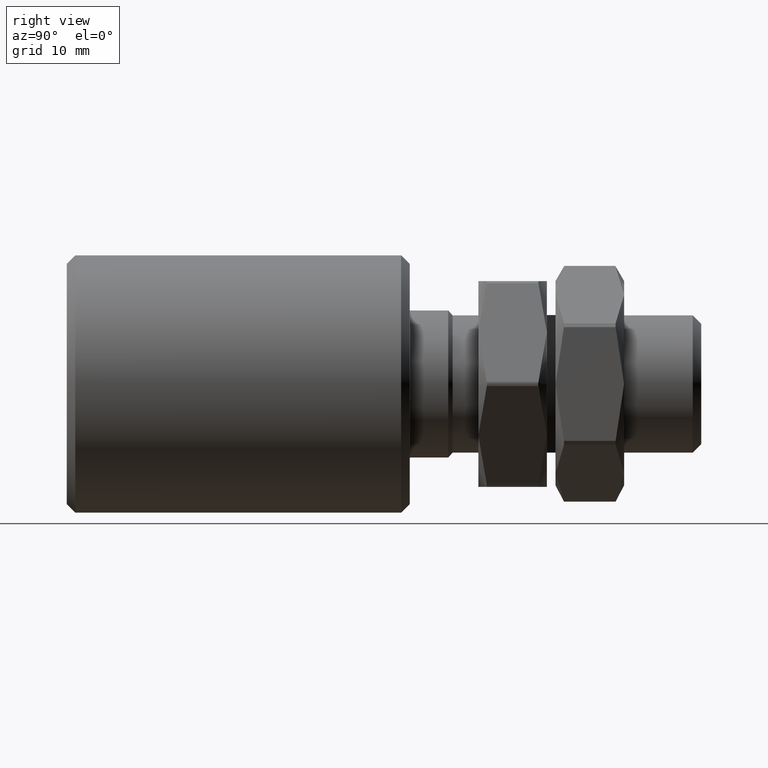
[diagram: clean part render]
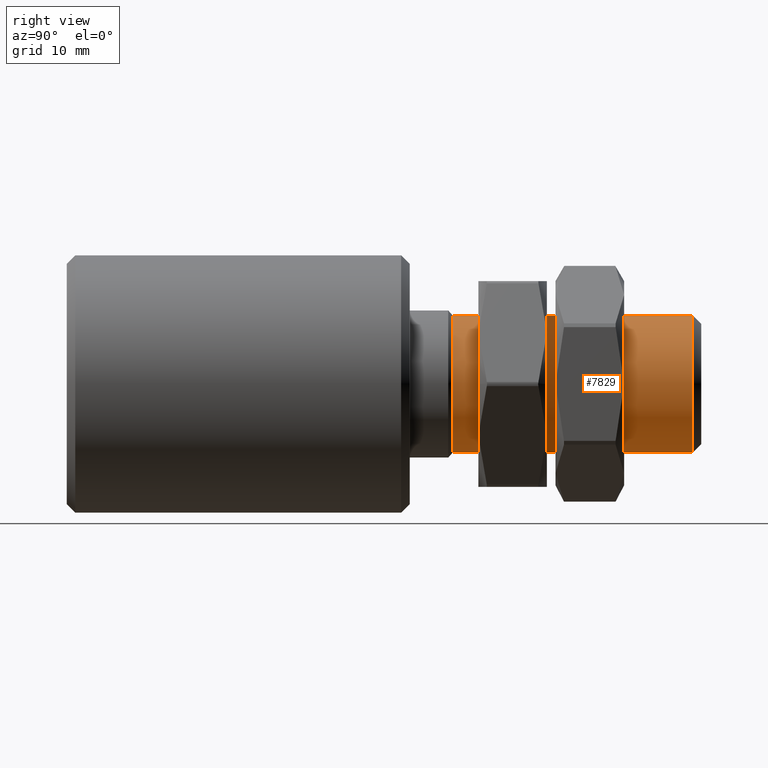
[diagram: same view with one face highlighted and labeled with its STEP entity id]
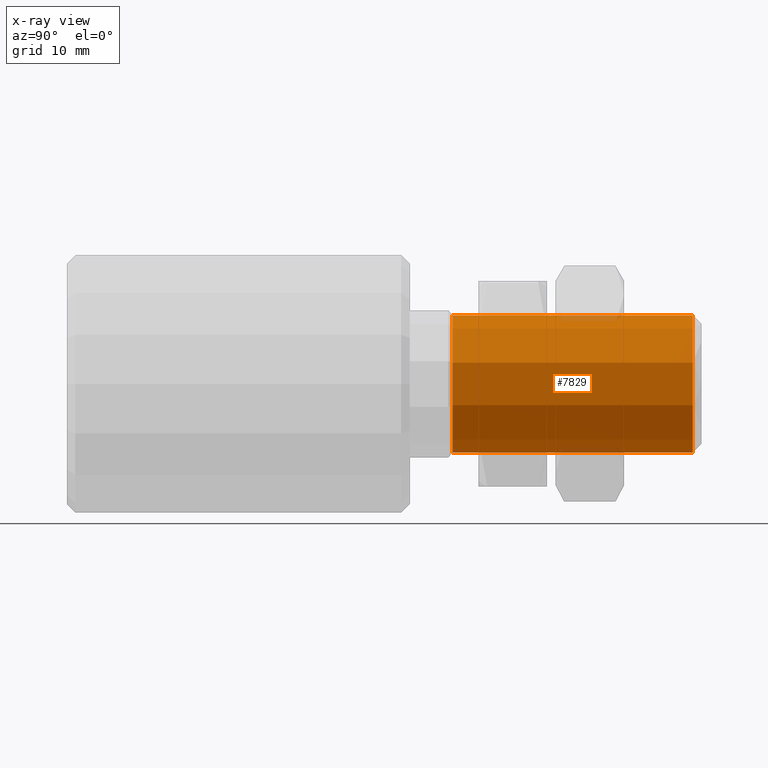
[diagram: x-ray of the same camera — body ghosted, the highlighted face saturated]
A machine part, right view. The second image highlights one B-rep face of the part: STEP entity #7829.
The next image is the same camera in x-ray: the body ghosted, the highlighted face saturated — about 2% of this face is hidden behind the body in this view.
In plain terms, the highlighted cylindrical surface (partial cylindrical patch) has radius 8 mm, axis along (-0, -1, -0).
Its self-contained STEP definition (entity closure, byte-faithful):
#392 = CARTESIAN_POINT ( 'NONE',  ( 9.797174393178833546E-16, 45.00000000000000000, 8.000000000000005329 ) ) ;
#923 = DIRECTION ( 'NONE',  ( -0.000000000000000000, -1.000000000000000000, -0.000000000000000000 ) ) ;
#1106 = CARTESIAN_POINT ( 'NONE',  ( 0.000000000000000000, 0.000000000000000000, -8.000000000000003553 ) ) ;
#1390 = LINE ( 'NONE', #5883, #8442 ) ;
#1473 = EDGE_CURVE ( 'NONE', #15410, #5084, #7862, .T. ) ;
#1705 = FACE_OUTER_BOUND ( 'NONE', #5018, .T. ) ;
#2207 = DIRECTION ( 'NONE',  ( -0.000000000000000000, -1.000000000000000000, -0.000000000000000000 ) ) ;
#2636 = EDGE_CURVE ( 'NONE', #5084, #12569, #1390, .T. ) ;
#3063 = AXIS2_PLACEMENT_3D ( 'NONE', #3871, #8733, #15086 ) ;
#3390 = ORIENTED_EDGE ( 'NONE', *, *, #1473, .T. ) ;
#3411 = VERTEX_POINT ( 'NONE', #14277 ) ;
#3568 = ORIENTED_EDGE ( 'NONE', *, *, #6084, .F. ) ;
#3871 = CARTESIAN_POINT ( 'NONE',  ( 0.000000000000000000, 45.00000000000000000, 0.000000000000000000 ) ) ;
#5018 = EDGE_LOOP ( 'NONE', ( #3390, #15071, #12575, #3568 ) ) ;
#5084 = VERTEX_POINT ( 'NONE', #14707 ) ;
#5883 = CARTESIAN_POINT ( 'NONE',  ( 9.797174393178831574E-16, 0.000000000000000000, 8.000000000000003553 ) ) ;
#6084 = EDGE_CURVE ( 'NONE', #15410, #3411, #10129, .T. ) ;
#6194 = AXIS2_PLACEMENT_3D ( 'NONE', #7404, #11011, #16167 ) ;
#7274 = CARTESIAN_POINT ( 'NONE',  ( 0.000000000000000000, 0.000000000000000000, 0.000000000000000000 ) ) ;
#7404 = CARTESIAN_POINT ( 'NONE',  ( 0.000000000000000000, 72.99999999999998579, 0.000000000000000000 ) ) ;
#7829 = ADVANCED_FACE ( 'NONE', ( #1705 ), #10297, .T. ) ;
#7862 = CIRCLE ( 'NONE', #6194, 8.000000000000003553 ) ;
#8442 = VECTOR ( 'NONE', #923, 1000.000000000000000 ) ;
#8476 = DIRECTION ( 'NONE',  ( -0.000000000000000000, -1.000000000000000000, -0.000000000000000000 ) ) ;
#8691 = DIRECTION ( 'NONE',  ( 0.000000000000000000, 0.000000000000000000, -1.000000000000000000 ) ) ;
#8733 = DIRECTION ( 'NONE',  ( -0.000000000000000000, -1.000000000000000000, -0.000000000000000000 ) ) ;
#9955 = CIRCLE ( 'NONE', #3063, 8.000000000000005329 ) ;
#10129 = LINE ( 'NONE', #1106, #13084 ) ;
#10297 = CYLINDRICAL_SURFACE ( 'NONE', #10346, 8.000000000000003553 ) ;
#10346 = AXIS2_PLACEMENT_3D ( 'NONE', #7274, #8476, #8691 ) ;
#11011 = DIRECTION ( 'NONE',  ( -0.000000000000000000, -1.000000000000000000, -0.000000000000000000 ) ) ;
#12569 = VERTEX_POINT ( 'NONE', #392 ) ;
#12575 = ORIENTED_EDGE ( 'NONE', *, *, #13224, .F. ) ;
#12706 = CARTESIAN_POINT ( 'NONE',  ( 0.000000000000000000, 72.99999999999998579, -8.000000000000003553 ) ) ;
#13084 = VECTOR ( 'NONE', #2207, 1000.000000000000000 ) ;
#13224 = EDGE_CURVE ( 'NONE', #3411, #12569, #9955, .T. ) ;
#14277 = CARTESIAN_POINT ( 'NONE',  ( 0.000000000000000000, 45.00000000000000000, -8.000000000000005329 ) ) ;
#14707 = CARTESIAN_POINT ( 'NONE',  ( 9.797174393178831574E-16, 72.99999999999998579, 8.000000000000003553 ) ) ;
#15071 = ORIENTED_EDGE ( 'NONE', *, *, #2636, .T. ) ;
#15086 = DIRECTION ( 'NONE',  ( 0.000000000000000000, 0.000000000000000000, -1.000000000000000000 ) ) ;
#15410 = VERTEX_POINT ( 'NONE', #12706 ) ;
#16167 = DIRECTION ( 'NONE',  ( 0.000000000000000000, 0.000000000000000000, 1.000000000000000000 ) ) ;